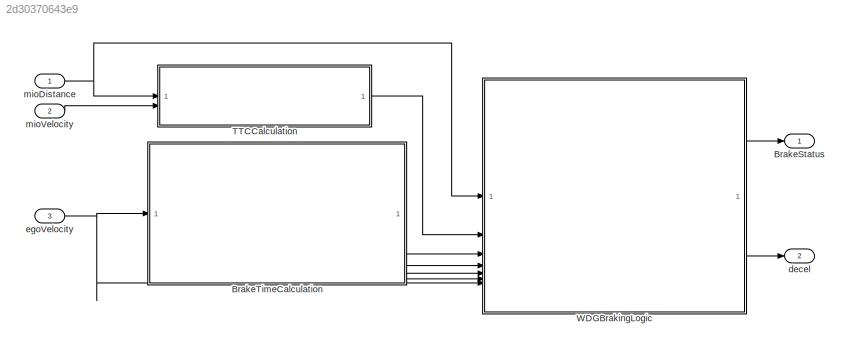
MODEL slx_2d30370643e9
KIND model
CONFIG AbsTol = auto
CONFIG EnableMultiTasking = on
CONFIG FixedStep = auto
CONFIG MaxStep = auto
CONFIG MinStep = auto
CONFIG RelTol = 1e-3
CONFIG SampleTimeConstraint = Unconstrained
CONFIG SolverName = FixedStepDiscrete
CONFIG StartTime = 0.0
CONFIG StopTime = 10.0
BLOCK [Outport] BrakeStatus
BLOCK [ModelReference] BrakeTimeCalculation
  ModelNameDialog = WDGBrakeTimeCalc
  ModelReferenceVersion = 8.0
BLOCK [ModelReference] TTCCalculation
  ModelNameDialog = WDGTTCCalculation
  ModelReferenceVersion = 8.0
BLOCK [ModelReference] WDGBrakingLogic
  ModelNameDialog = WDGBrakingLogic
  ModelReferenceVersion = 8.0
BLOCK [Outport] decel
  Port = 2
BLOCK [Inport] egoVelocity
  Port = 3
BLOCK [Inport] mioDistance
BLOCK [Inport] mioVelocity
  Port = 2
LINE BrakeTimeCalculation:1 -> WDGBrakingLogic:3
LINE BrakeTimeCalculation:2 -> WDGBrakingLogic:4
LINE BrakeTimeCalculation:3 -> WDGBrakingLogic:5
LINE BrakeTimeCalculation:4 -> WDGBrakingLogic:6
LINE TTCCalculation:1 -> WDGBrakingLogic:2
LINE WDGBrakingLogic:1 -> BrakeStatus:1
LINE WDGBrakingLogic:2 -> decel:1
NET egoVelocity:1 -> BrakeTimeCalculation:1, WDGBrakingLogic:7
NET mioDistance:1 -> TTCCalculation:1, WDGBrakingLogic:1
LINE mioVelocity:1 -> TTCCalculation:2
note: NET lines group one-source signal fan-out (src -> all destinations, sorted); 1:1 wires keep LINE
